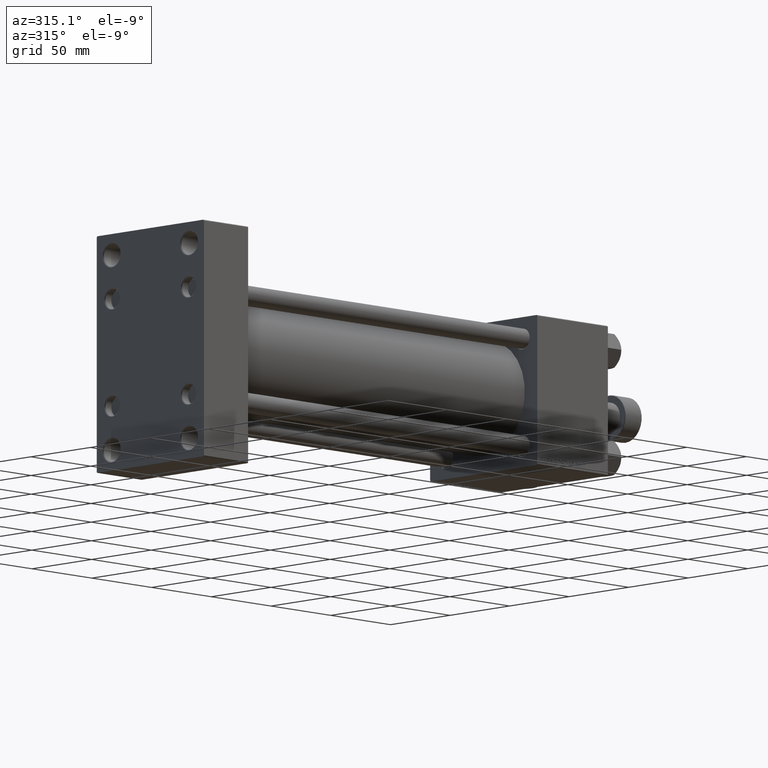
[diagram: clean part render]
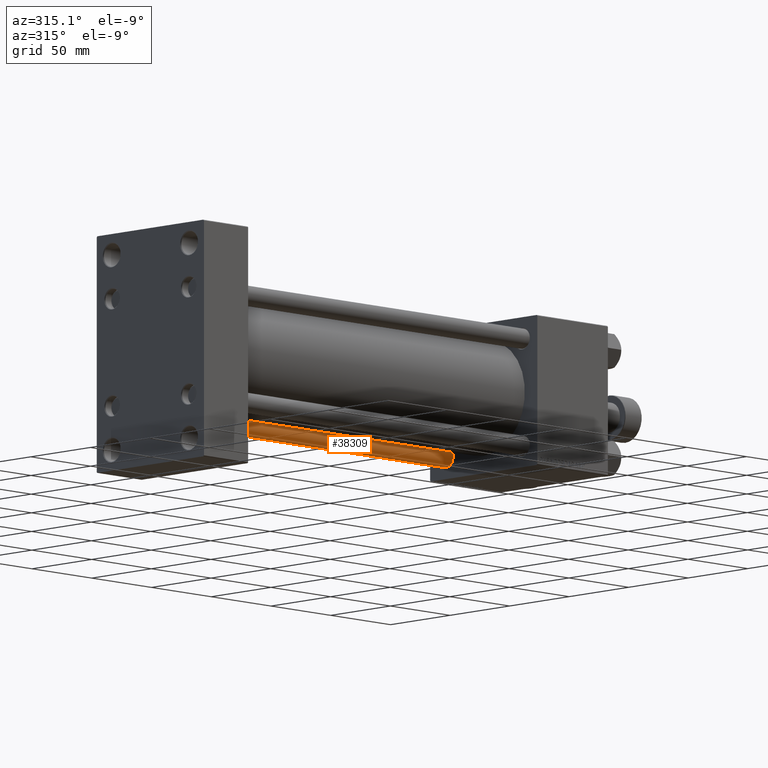
[diagram: same view with one face highlighted and labeled with its STEP entity id]
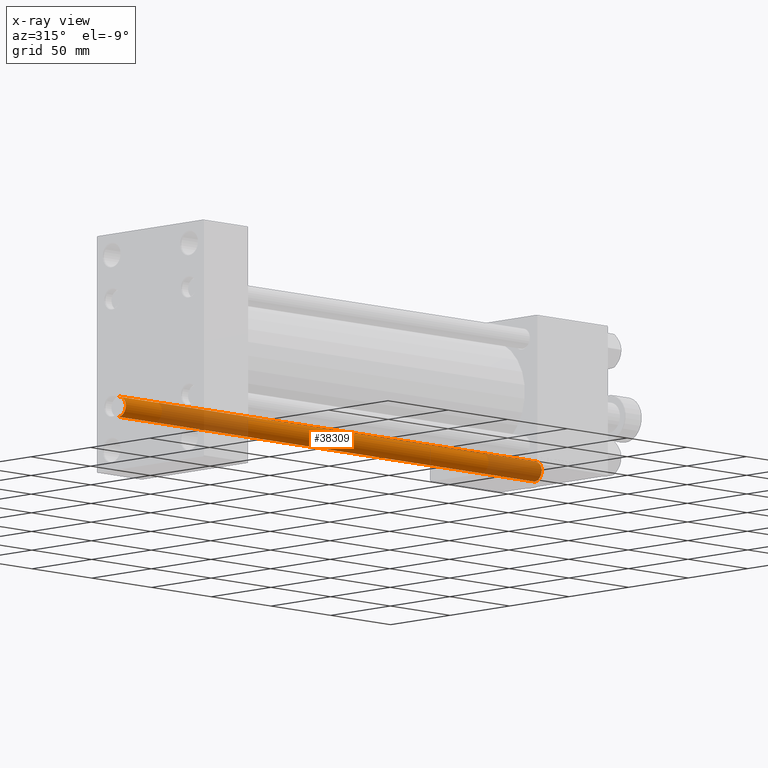
[diagram: x-ray of the same camera — body ghosted, the highlighted face saturated]
A machine part, auxiliary view. The second image highlights one B-rep face of the part: STEP entity #38309.
The next image is the same camera in x-ray: the body ghosted, the highlighted face saturated — about 35% of this face is hidden behind the body in this view.
In plain terms, the highlighted cylindrical surface (edge-blend (fillet) strip) has radius 6 mm, axis along (-1, 0, 0).
Its self-contained STEP definition (entity closure, byte-faithful):
#89 = DIRECTION ( 'NONE',  ( -0.000000000000000000, -0.000000000000000000, -1.000000000000000000 ) ) ;
#119 = LINE ( 'NONE', #639, #6471 ) ;
#610 = FACE_OUTER_BOUND ( 'NONE', #17817, .T. ) ;
#639 = CARTESIAN_POINT ( 'NONE',  ( 6.000000000000000888, 7.347880794884120722E-16, 349.0000000000000000 ) ) ;
#766 = CARTESIAN_POINT ( 'NONE',  ( -6.000000000000000888, 0.000000000000000000, 348.5000000000000568 ) ) ;
#1026 = DIRECTION ( 'NONE',  ( 1.000000000000000000, 0.000000000000000000, 0.000000000000000000 ) ) ;
#1805 = CARTESIAN_POINT ( 'NONE',  ( 0.000000000000000000, 0.000000000000000000, 348.5000000000000568 ) ) ;
#3468 = VERTEX_POINT ( 'NONE', #21848 ) ;
#6471 = VECTOR ( 'NONE', #49258, 1000.000000000000000 ) ;
#6532 = EDGE_CURVE ( 'NONE', #33031, #3468, #119, .T. ) ;
#7389 = DIRECTION ( 'NONE',  ( -0.000000000000000000, -0.000000000000000000, -1.000000000000000000 ) ) ;
#9506 = VERTEX_POINT ( 'NONE', #16393 ) ;
#9522 = CARTESIAN_POINT ( 'NONE',  ( 0.000000000000000000, 0.000000000000000000, 0.5000000000000559552 ) ) ;
#10367 = ORIENTED_EDGE ( 'NONE', *, *, #18445, .F. ) ;
#11353 = CARTESIAN_POINT ( 'NONE',  ( -6.000000000000000888, 0.000000000000000000, 349.0000000000000000 ) ) ;
#14919 = CARTESIAN_POINT ( 'NONE',  ( 6.000000000000000888, 7.347880794884120722E-16, 348.5000000000000568 ) ) ;
#16393 = CARTESIAN_POINT ( 'NONE',  ( -6.000000000000000888, 0.000000000000000000, 0.5000000000000559552 ) ) ;
#17741 = DIRECTION ( 'NONE',  ( 0.000000000000000000, 0.000000000000000000, -1.000000000000000000 ) ) ;
#17817 = EDGE_LOOP ( 'NONE', ( #22520, #45671, #39816, #10367 ) ) ;
#18345 = EDGE_CURVE ( 'NONE', #23358, #33031, #44938, .T. ) ;
#18445 = EDGE_CURVE ( 'NONE', #23358, #9506, #43783, .T. ) ;
#21493 = EDGE_CURVE ( 'NONE', #3468, #9506, #49330, .T. ) ;
#21848 = CARTESIAN_POINT ( 'NONE',  ( 6.000000000000000888, 7.347880794884120722E-16, 0.5000000000000559552 ) ) ;
#22520 = ORIENTED_EDGE ( 'NONE', *, *, #18345, .T. ) ;
#23358 = VERTEX_POINT ( 'NONE', #766 ) ;
#23764 = AXIS2_PLACEMENT_3D ( 'NONE', #1805, #17741, #33939 ) ;
#28762 = DIRECTION ( 'NONE',  ( -1.000000000000000000, 0.000000000000000000, 0.000000000000000000 ) ) ;
#29791 = AXIS2_PLACEMENT_3D ( 'NONE', #9522, #37430, #1026 ) ;
#30992 = AXIS2_PLACEMENT_3D ( 'NONE', #40235, #89, #28762 ) ;
#33031 = VERTEX_POINT ( 'NONE', #14919 ) ;
#33939 = DIRECTION ( 'NONE',  ( 1.000000000000000000, 0.000000000000000000, 0.000000000000000000 ) ) ;
#37430 = DIRECTION ( 'NONE',  ( -0.000000000000000000, -0.000000000000000000, 1.000000000000000000 ) ) ;
#38309 = ADVANCED_FACE ( 'NONE', ( #610 ), #52456, .T. ) ;
#39816 = ORIENTED_EDGE ( 'NONE', *, *, #21493, .T. ) ;
#40235 = CARTESIAN_POINT ( 'NONE',  ( 0.000000000000000000, 0.000000000000000000, 349.0000000000000000 ) ) ;
#43783 = LINE ( 'NONE', #11353, #44974 ) ;
#44938 = CIRCLE ( 'NONE', #23764, 6.000000000000000888 ) ;
#44974 = VECTOR ( 'NONE', #7389, 1000.000000000000000 ) ;
#45671 = ORIENTED_EDGE ( 'NONE', *, *, #6532, .T. ) ;
#49258 = DIRECTION ( 'NONE',  ( -0.000000000000000000, -0.000000000000000000, -1.000000000000000000 ) ) ;
#49330 = CIRCLE ( 'NONE', #29791, 6.000000000000000888 ) ;
#52456 = CYLINDRICAL_SURFACE ( 'NONE', #30992, 6.000000000000000888 ) ;